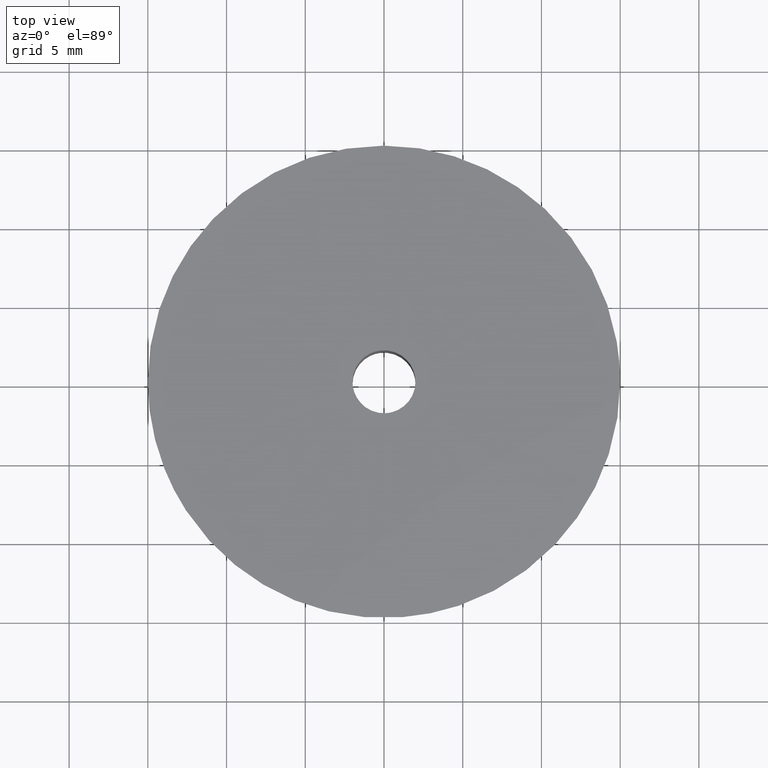
[diagram: clean part render]
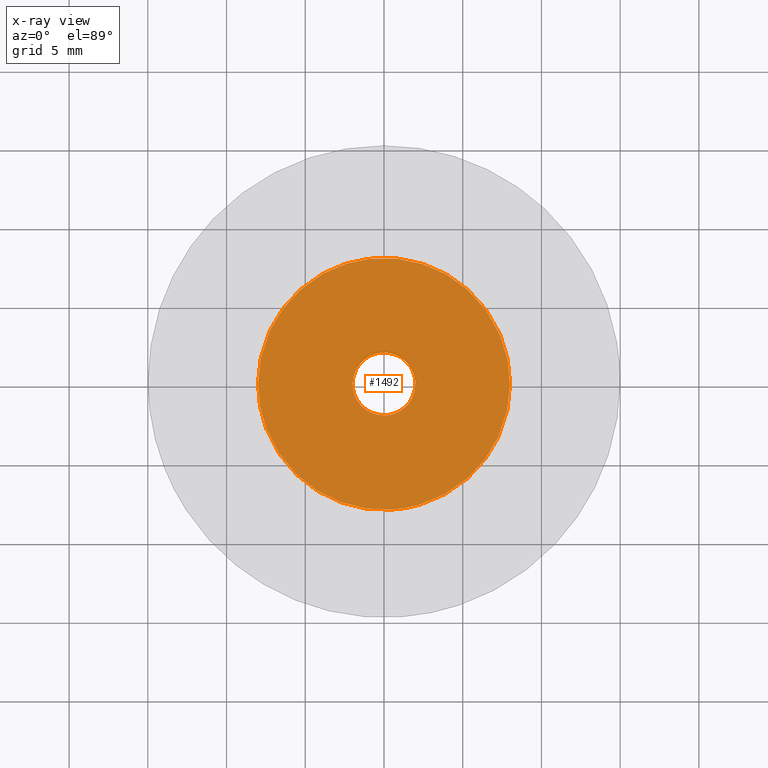
[diagram: x-ray — body ghosted, one internal face saturated and labeled with its STEP entity id]
A machine part, top view, then the same camera in x-ray: the body is ghosted and one INTERNAL B-rep face — a face not visible from any outside direction — is saturated and labeled: STEP entity #1492.
In plain terms, the highlighted face is a freeform B-spline surface patch.
Its self-contained STEP definition (entity closure, byte-faithful):
#758=CARTESIAN_POINT('',(-0.236068469328979,1.986019052725495,10.800000000000001));
#759=VERTEX_POINT('',#758);
#765=CARTESIAN_POINT('',(2.0,0.0,10.800000000000001));
#766=VERTEX_POINT('',#765);
#767=CARTESIAN_POINT('',(-0.236068469328979,1.986019052725495,10.799999999999999));
#768=CARTESIAN_POINT('',(-0.118448239319446,2.000000000000000,10.800000000000006));
#769=CARTESIAN_POINT('',(0.0,2.0,10.800000000000001));
#770=CARTESIAN_POINT('',(2.000000000000000,2.000000000000000,10.800000000000001));
#771=CARTESIAN_POINT('',(2.0,0.0,10.800000000000001));
#779=(BOUNDED_CURVE()B_SPLINE_CURVE(2,(#767,#768,#769,#770,#771),.UNSPECIFIED.,.F.,.U.)B_SPLINE_CURVE_WITH_KNOTS((3,2,3),(0.229562473513013,0.250000000000000,0.500000000000000),.UNSPECIFIED.)CURVE()GEOMETRIC_REPRESENTATION_ITEM()RATIONAL_B_SPLINE_CURVE((0.956026754182728,0.976055948330564,1.0,0.707106781186548,1.0))REPRESENTATION_ITEM(''));
#780=EDGE_CURVE('',#759,#766,#779,.T.);
#782=CARTESIAN_POINT('',(0.122093436056999,-1.996269819653264,10.800000000000001));
#783=VERTEX_POINT('',#782);
#784=CARTESIAN_POINT('',(2.0,0.0,10.800000000000001));
#785=CARTESIAN_POINT('',(1.999999999999999,-1.881415573638085,10.800000000000001));
#786=CARTESIAN_POINT('',(0.122093436056999,-1.996269819653264,10.800000000000008));
#794=(BOUNDED_CURVE()B_SPLINE_CURVE(2,(#784,#785,#786),.UNSPECIFIED.,.F.,.U.)B_SPLINE_CURVE_WITH_KNOTS((3,3),(0.500000000000000,0.739333277124436),.UNSPECIFIED.)CURVE()GEOMETRIC_REPRESENTATION_ITEM()RATIONAL_B_SPLINE_CURVE((1.0,0.719603624375408,0.976072716527199))REPRESENTATION_ITEM(''));
#795=EDGE_CURVE('',#766,#783,#794,.T.);
#869=CARTESIAN_POINT('',(-2.0,0.0,10.800000000000001));
#870=VERTEX_POINT('',#869);
#871=CARTESIAN_POINT('',(0.122093436056999,-1.996269819653264,10.800000000000008));
#872=CARTESIAN_POINT('',(0.061103699983748,-2.000000000000000,10.799999999999999));
#873=CARTESIAN_POINT('',(0.0,-2.0,10.800000000000001));
#874=CARTESIAN_POINT('',(-2.000000000000000,-2.000000000000000,10.800000000000001));
#875=CARTESIAN_POINT('',(-2.0,0.0,10.800000000000001));
#883=(BOUNDED_CURVE()B_SPLINE_CURVE(2,(#871,#872,#873,#874,#875),.UNSPECIFIED.,.F.,.U.)B_SPLINE_CURVE_WITH_KNOTS((3,2,3),(0.739333277124436,0.750000000000000,1.0),.UNSPECIFIED.)CURVE()GEOMETRIC_REPRESENTATION_ITEM()RATIONAL_B_SPLINE_CURVE((0.976072716527199,0.987503156811140,1.0,0.707106781186548,1.0))REPRESENTATION_ITEM(''));
#884=EDGE_CURVE('',#783,#870,#883,.T.);
#886=CARTESIAN_POINT('',(-2.0,0.0,10.800000000000001));
#887=CARTESIAN_POINT('',(-2.000000000000000,1.776349051874881,10.800000000000001));
#888=CARTESIAN_POINT('',(-0.236068469328979,1.986019052725495,10.800000000000002));
#896=(BOUNDED_CURVE()B_SPLINE_CURVE(2,(#886,#887,#888),.UNSPECIFIED.,.F.,.U.)B_SPLINE_CURVE_WITH_KNOTS((3,3),(0.0,0.229562473513013),.UNSPECIFIED.)CURVE()GEOMETRIC_REPRESENTATION_ITEM()RATIONAL_B_SPLINE_CURVE((1.0,0.731050832855983,0.956026754182728))REPRESENTATION_ITEM(''));
#897=EDGE_CURVE('',#870,#759,#896,.T.);
#925=CARTESIAN_POINT('',(-0.944263668130188,7.944077424405153,10.800000000000230));
#926=VERTEX_POINT('',#925);
#927=CARTESIAN_POINT('',(8.0,0.0,10.800000000000001));
#928=VERTEX_POINT('',#927);
#929=CARTESIAN_POINT('',(-0.944263668130188,7.944077424405153,10.800000000000232));
#930=CARTESIAN_POINT('',(-0.473787798689548,8.0,10.799999999999997));
#931=CARTESIAN_POINT('',(0.0,8.0,10.800000000000001));
#932=CARTESIAN_POINT('',(8.0,8.0,10.800000000000001));
#933=CARTESIAN_POINT('',(8.0,0.0,10.800000000000001));
#941=(BOUNDED_CURVE()B_SPLINE_CURVE(2,(#929,#930,#931,#932,#933),.UNSPECIFIED.,.F.,.U.)B_SPLINE_CURVE_WITH_KNOTS((3,2,3),(0.229562690705811,0.250000000000000,0.500000000000000),.UNSPECIFIED.)CURVE()GEOMETRIC_REPRESENTATION_ITEM()RATIONAL_B_SPLINE_CURVE((0.956027179889943,0.976056202787756,1.0,0.707106781186548,1.0))REPRESENTATION_ITEM(''));
#942=EDGE_CURVE('',#926,#928,#941,.T.);
#983=CARTESIAN_POINT('',(0.488383229015219,-7.985078698522055,10.799999999999770));
#984=VERTEX_POINT('',#983);
#990=CARTESIAN_POINT('',(8.0,0.0,10.800000000000001));
#991=CARTESIAN_POINT('',(8.0,-7.525653338768939,10.799999999999999));
#992=CARTESIAN_POINT('',(0.488383229015219,-7.985078698522055,10.799999999999766));
#1000=(BOUNDED_CURVE()B_SPLINE_CURVE(2,(#990,#991,#992),.UNSPECIFIED.,.F.,.U.)B_SPLINE_CURVE_WITH_KNOTS((3,3),(0.500000000000000,0.739333072170893),.UNSPECIFIED.)CURVE()GEOMETRIC_REPRESENTATION_ITEM()RATIONAL_B_SPLINE_CURVE((1.0,0.719603864493419,0.976072277271927))REPRESENTATION_ITEM(''));
#1001=EDGE_CURVE('',#928,#984,#1000,.T.);
#1024=CARTESIAN_POINT('',(-8.0,0.0,10.800000000000001));
#1025=VERTEX_POINT('',#1024);
#1026=CARTESIAN_POINT('',(-8.0,0.0,10.800000000000001));
#1027=CARTESIAN_POINT('',(-8.0,7.105405403212353,10.800000000000001));
#1028=CARTESIAN_POINT('',(-0.944263668130188,7.944077424405153,10.800000000000232));
#1036=(BOUNDED_CURVE()B_SPLINE_CURVE(2,(#1026,#1027,#1028),.UNSPECIFIED.,.F.,.U.)B_SPLINE_CURVE_WITH_KNOTS((3,3),(0.0,0.229562690705811),.UNSPECIFIED.)CURVE()GEOMETRIC_REPRESENTATION_ITEM()RATIONAL_B_SPLINE_CURVE((1.0,0.731050578398792,0.956027179889943))REPRESENTATION_ITEM(''));
#1037=EDGE_CURVE('',#1025,#926,#1036,.T.);
#1039=CARTESIAN_POINT('',(0.488383229015219,-7.985078698522055,10.799999999999766));
#1040=CARTESIAN_POINT('',(0.244419555624922,-8.0,10.800000000000004));
#1041=CARTESIAN_POINT('',(0.0,-8.0,10.800000000000001));
#1042=CARTESIAN_POINT('',(-8.0,-8.0,10.800000000000001));
#1043=CARTESIAN_POINT('',(-8.0,0.0,10.800000000000001));
#1051=(BOUNDED_CURVE()B_SPLINE_CURVE(2,(#1039,#1040,#1041,#1042,#1043),.UNSPECIFIED.,.F.,.U.)B_SPLINE_CURVE_WITH_KNOTS((3,2,3),(0.739333072170893,0.750000000000000,1.0),.UNSPECIFIED.)CURVE()GEOMETRIC_REPRESENTATION_ITEM()RATIONAL_B_SPLINE_CURVE((0.976072277271927,0.987502916693128,1.0,0.707106781186548,1.0))REPRESENTATION_ITEM(''));
#1052=EDGE_CURVE('',#984,#1025,#1051,.T.);
#1475=CARTESIAN_POINT('',(-8.799199968988896,-8.799005706689346,10.800000000000001));
#1476=CARTESIAN_POINT('',(8.799200398142338,-8.799005706689346,10.800000000000001));
#1477=CARTESIAN_POINT('',(-8.799199968988896,8.799054487130633,10.800000000000001));
#1478=CARTESIAN_POINT('',(8.799200398142338,8.799054487130633,10.800000000000001));
#1479=B_SPLINE_SURFACE_WITH_KNOTS('',1,1,((#1475,#1477),(#1476,#1478)),.UNSPECIFIED.,.F.,.F.,.U.,(2,2),(2,2),(0.0,17.598400367131230),(0.0,17.598060193819979),.UNSPECIFIED.);
#1480=ORIENTED_EDGE('',*,*,#1037,.T.);
#1481=ORIENTED_EDGE('',*,*,#942,.T.);
#1482=ORIENTED_EDGE('',*,*,#1001,.T.);
#1483=ORIENTED_EDGE('',*,*,#1052,.T.);
#1484=EDGE_LOOP('',(#1480,#1481,#1482,#1483));
#1485=FACE_OUTER_BOUND('',#1484,.T.);
#1486=ORIENTED_EDGE('',*,*,#795,.F.);
#1487=ORIENTED_EDGE('',*,*,#780,.F.);
#1488=ORIENTED_EDGE('',*,*,#897,.F.);
#1489=ORIENTED_EDGE('',*,*,#884,.F.);
#1490=EDGE_LOOP('',(#1486,#1487,#1488,#1489));
#1491=FACE_BOUND('',#1490,.T.);
#1492=ADVANCED_FACE('',(#1485,#1491),#1479,.F.);